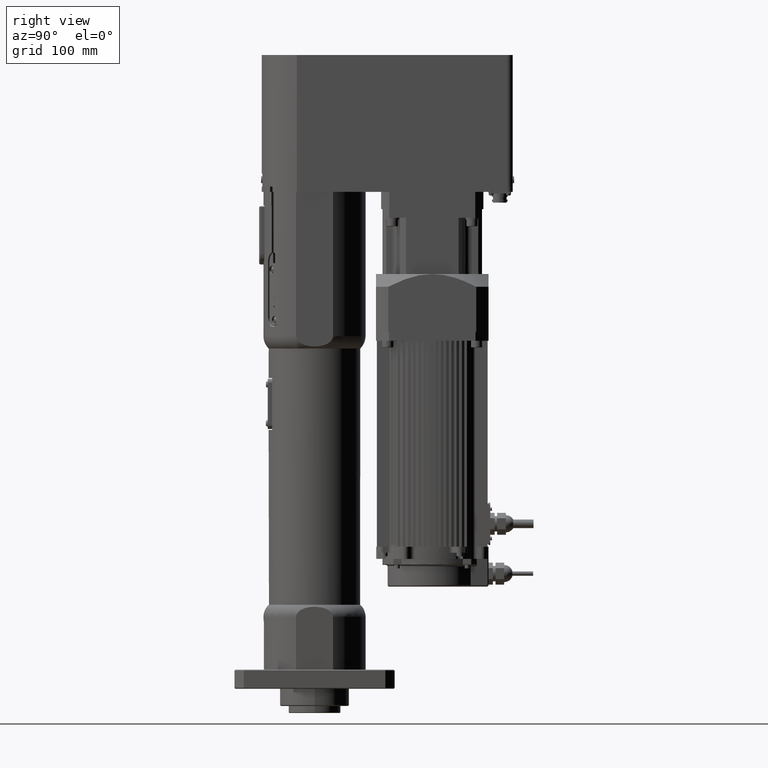
[diagram: clean part render]
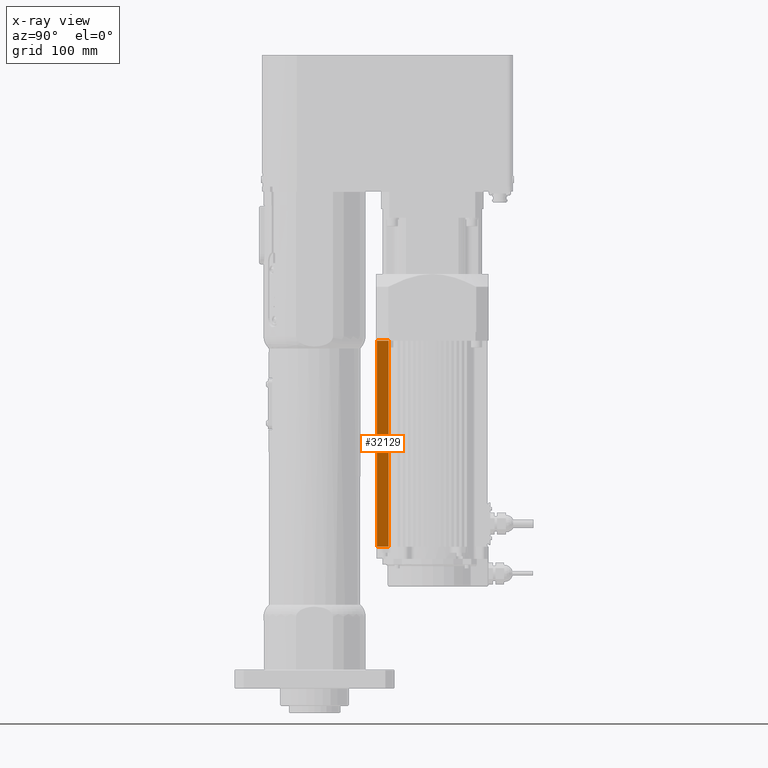
[diagram: x-ray — body ghosted, one internal face saturated and labeled with its STEP entity id]
A machine part, right view, then the same camera in x-ray: the body is ghosted and one INTERNAL B-rep face — a face not visible from any outside direction — is saturated and labeled: STEP entity #32129.
In plain terms, the highlighted planar face has unit normal (-1, 0, 0).
Its self-contained STEP definition (entity closure, byte-faithful):
#3962=LINE('',#53130,#6356);
#4228=LINE('',#53730,#6622);
#4229=LINE('',#53733,#6623);
#4230=LINE('',#53734,#6624);
#4231=LINE('',#53735,#6625);
#6356=VECTOR('',#42231,10.);
#6622=VECTOR('',#42783,10.);
#6623=VECTOR('',#42786,10.);
#6624=VECTOR('',#42787,10.);
#6625=VECTOR('',#42788,10.);
#7942=PLANE('',#35118);
#9390=FACE_OUTER_BOUND('',#11270,.T.);
#11270=EDGE_LOOP('',(#27605,#27606,#27607,#27608,#27609));
#15886=VERTEX_POINT('',#53121);
#15890=VERTEX_POINT('',#53128);
#16080=VERTEX_POINT('',#53726);
#16081=VERTEX_POINT('',#53728);
#16082=VERTEX_POINT('',#53732);
#19871=EDGE_CURVE('',#15890,#15886,#3962,.T.);
#20169=EDGE_CURVE('',#16080,#16081,#4228,.T.);
#20170=EDGE_CURVE('',#16080,#16082,#4229,.T.);
#20171=EDGE_CURVE('',#15886,#16081,#4230,.T.);
#20172=EDGE_CURVE('',#16082,#15890,#4231,.T.);
#27605=ORIENTED_EDGE('',*,*,#20170,.F.);
#27606=ORIENTED_EDGE('',*,*,#20169,.T.);
#27607=ORIENTED_EDGE('',*,*,#20171,.F.);
#27608=ORIENTED_EDGE('',*,*,#19871,.F.);
#27609=ORIENTED_EDGE('',*,*,#20172,.F.);
#32129=ADVANCED_FACE('',(#9390),#7942,.T.);
#35118=AXIS2_PLACEMENT_3D('',#53731,#42784,#42785);
#42231=DIRECTION('',(1.15450094485555E-12,1.,-6.74436261620917E-15));
#42783=DIRECTION('',(-1.88225499835395E-16,-6.74436261620895E-15,-1.));
#42784=DIRECTION('center_axis',(-1.,1.15450094485555E-12,1.88225499827609E-16));
#42785=DIRECTION('ref_axis',(1.15450094485555E-12,1.,-6.74436261620917E-15));
#42786=DIRECTION('',(-1.15450094485555E-12,-1.,6.74436261620917E-15));
#42787=DIRECTION('',(1.15450094485555E-12,1.,-6.74436261620917E-15));
#42788=DIRECTION('',(-1.88225499835395E-16,-6.74436261620895E-15,-1.));
#53121=CARTESIAN_POINT('',(36.999999999928,73.6461709276477,164.00000000001));
#53128=CARTESIAN_POINT('',(36.9999999999261,72.0000000001273,164.00000000001));
#53130=CARTESIAN_POINT('',(36.9999999999261,72.0000000001273,164.00000000001));
#53726=CARTESIAN_POINT('',(36.9999999999419,85.6288773205618,402.00000000001));
#53728=CARTESIAN_POINT('',(36.9999999999419,85.6288773205602,164.00000000001));
#53730=CARTESIAN_POINT('',(36.9999999999419,85.6288773205618,402.00000000001));
#53731=CARTESIAN_POINT('Origin',(36.9999999999262,72.0000000001289,402.00000000001));
#53732=CARTESIAN_POINT('',(36.9999999999262,72.0000000001289,402.00000000001));
#53733=CARTESIAN_POINT('',(36.9999999999631,104.000000000129,402.00000000001));
#53734=CARTESIAN_POINT('',(36.9999999999261,72.0000000001273,164.00000000001));
#53735=CARTESIAN_POINT('',(36.9999999999262,72.0000000001289,402.00000000001));